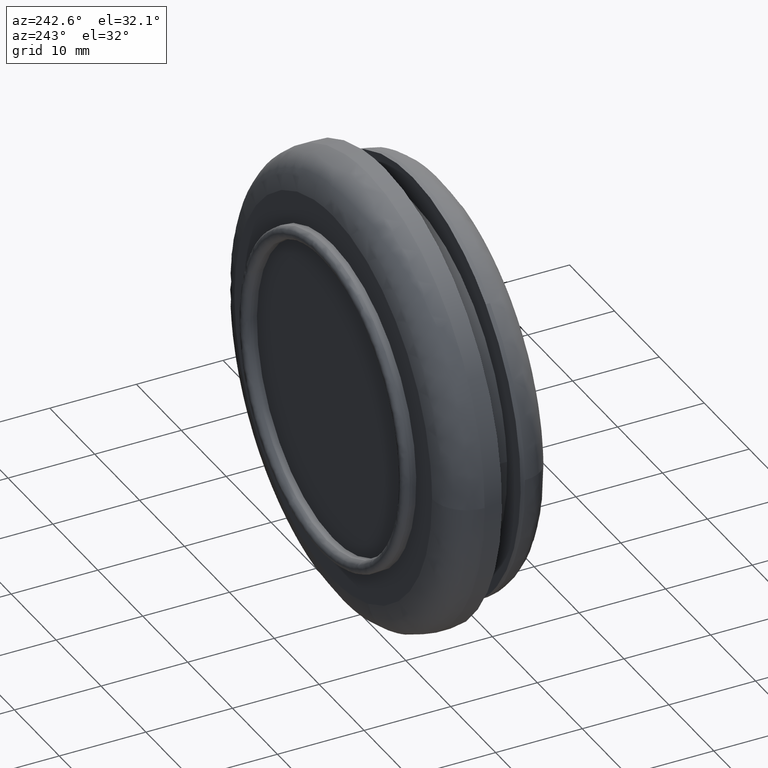
[diagram: clean part render]
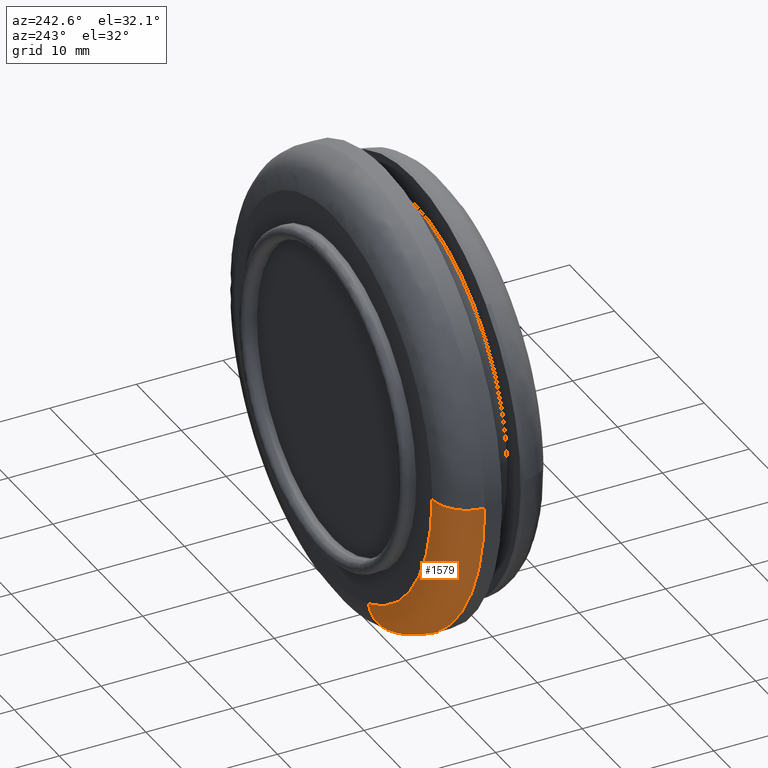
[diagram: same view with one face highlighted and labeled with its STEP entity id]
A machine part, auxiliary view. The second image highlights one B-rep face of the part: STEP entity #1579.
In plain terms, the highlighted face is a freeform B-spline surface patch.
Its self-contained STEP definition (entity closure, byte-faithful):
#713=CARTESIAN_POINT('',(-25.999999999999989,9.200000000026588,1.921379E-017));
#714=VERTEX_POINT('',#713);
#728=CARTESIAN_POINT('',(-9.185851133165627,9.200000000027924,-24.323242772280992));
#729=VERTEX_POINT('',#728);
#730=CARTESIAN_POINT('',(-25.999999999999989,9.200000000026588,1.921379E-017));
#731=CARTESIAN_POINT('',(-26.000000000000004,9.199999999999781,-17.973256059255309));
#732=CARTESIAN_POINT('',(-9.185851133165627,9.200000000027924,-24.323242772280988));
#740=(BOUNDED_CURVE()B_SPLINE_CURVE(2,(#730,#731,#732),.UNSPECIFIED.,.F.,.U.)B_SPLINE_CURVE_WITH_KNOTS((3,3),(0.750000000000000,0.939999999999961),.UNSPECIFIED.)CURVE()GEOMETRIC_REPRESENTATION_ITEM()RATIONAL_B_SPLINE_CURVE((1.0,0.777401153701821,0.893152553776805))REPRESENTATION_ITEM(''));
#741=EDGE_CURVE('',#714,#729,#740,.T.);
#1461=CARTESIAN_POINT('',(-7.772643267115173,13.199999999999790,-20.581205424060780));
#1462=VERTEX_POINT('',#1461);
#1495=CARTESIAN_POINT('',(-22.000000000082849,13.199999999999790,7.535010E-016));
#1496=VERTEX_POINT('',#1495);
#1510=CARTESIAN_POINT('',(-22.000000000082853,13.199999999999784,7.535010E-016));
#1511=CARTESIAN_POINT('',(-25.999999999946365,13.199999999834075,3.403246E-016));
#1512=CARTESIAN_POINT('',(-25.999999999999989,9.200000000026586,1.921379E-017));
#1520=(BOUNDED_CURVE()B_SPLINE_CURVE(2,(#1510,#1511,#1512),.UNSPECIFIED.,.F.,.U.)B_SPLINE_CURVE_WITH_KNOTS((3,3),(-1.736413121029296,-0.276558718029032),.UNSPECIFIED.)CURVE()GEOMETRIC_REPRESENTATION_ITEM()RATIONAL_B_SPLINE_CURVE((0.888510409047168,0.626638727247571,0.883897567133800))REPRESENTATION_ITEM(''));
#1521=EDGE_CURVE('',#1496,#714,#1520,.T.);
#1528=CARTESIAN_POINT('',(-7.772643267115174,13.199999999999790,-20.581205424060773));
#1529=CARTESIAN_POINT('',(-9.185851133142720,13.199999997035253,-24.323242772229477));
#1530=CARTESIAN_POINT('',(-9.185851133165627,9.200000000027924,-24.323242772280995));
#1538=(BOUNDED_CURVE()B_SPLINE_CURVE(2,(#1528,#1529,#1530),.UNSPECIFIED.,.F.,.U.)B_SPLINE_CURVE_WITH_KNOTS((3,3),(-1.736413120305125,-0.276558718029719),.UNSPECIFIED.)CURVE()GEOMETRIC_REPRESENTATION_ITEM()RATIONAL_B_SPLINE_CURVE((0.793575340665748,0.559683979650734,0.789455369362485))REPRESENTATION_ITEM(''));
#1539=EDGE_CURVE('',#1462,#729,#1538,.T.);
#1544=CARTESIAN_POINT('',(-21.722597218894382,13.190369368496246,1.330082E-015));
#1545=CARTESIAN_POINT('',(-21.722597218894393,13.190369368496251,-15.016376760974529));
#1546=CARTESIAN_POINT('',(-7.674636625266986,13.190369368496247,-20.321692414866153));
#1547=CARTESIAN_POINT('',(-26.310957425845796,13.509343319171448,1.611028E-015));
#1548=CARTESIAN_POINT('',(-26.310957425845796,13.509343319171442,-18.188214128686493));
#1549=CARTESIAN_POINT('',(-9.295713374945779,13.509343319171450,-24.614146207324033));
#1550=CARTESIAN_POINT('',(-25.990265204221981,8.921102886398284,1.591392E-015));
#1551=CARTESIAN_POINT('',(-25.990265204221977,8.921102886398284,-17.966526308593394));
#1552=CARTESIAN_POINT('',(-9.182412177823203,8.921102886398284,-24.314135641275765));
#1560=(BOUNDED_SURFACE()B_SPLINE_SURFACE(2,2,((#1544,#1547,#1550),(#1545,#1548,#1551),(#1546,#1549,#1552)),.UNSPECIFIED.,.F.,.F.,.U.)B_SPLINE_SURFACE_WITH_KNOTS((3,3),(3,3),(0.0,32.406916869798359),(0.0,7.289482341999962),.UNSPECIFIED.)GEOMETRIC_REPRESENTATION_ITEM()RATIONAL_B_SPLINE_SURFACE(((0.915966672436171,0.599412889278970,0.910892980116761),(0.712073550462777,0.465984273343495,0.708129256185968),(0.818097969999989,0.535367151084993,0.813566388762569)))REPRESENTATION_ITEM('')SURFACE());
#1561=CARTESIAN_POINT('',(-22.000000000082849,13.199999999999790,7.535010E-016));
#1562=CARTESIAN_POINT('',(-22.000000000000004,13.199999999999802,-15.208139742341407));
#1563=CARTESIAN_POINT('',(-7.772643267115173,13.199999999999790,-20.581205424060773));
#1571=(BOUNDED_CURVE()B_SPLINE_CURVE(2,(#1561,#1562,#1563),.UNSPECIFIED.,.F.,.U.)B_SPLINE_CURVE_WITH_KNOTS((3,3),(0.750000000000000,0.939999999998938),.UNSPECIFIED.)CURVE()GEOMETRIC_REPRESENTATION_ITEM()RATIONAL_B_SPLINE_CURVE((1.0,0.777401153703021,0.893152553775558))REPRESENTATION_ITEM(''));
#1572=EDGE_CURVE('',#1496,#1462,#1571,.T.);
#1573=ORIENTED_EDGE('',*,*,#1572,.T.);
#1574=ORIENTED_EDGE('',*,*,#1539,.T.);
#1575=ORIENTED_EDGE('',*,*,#741,.F.);
#1576=ORIENTED_EDGE('',*,*,#1521,.F.);
#1577=EDGE_LOOP('',(#1573,#1574,#1575,#1576));
#1578=FACE_OUTER_BOUND('',#1577,.T.);
#1579=ADVANCED_FACE('',(#1578),#1560,.T.);